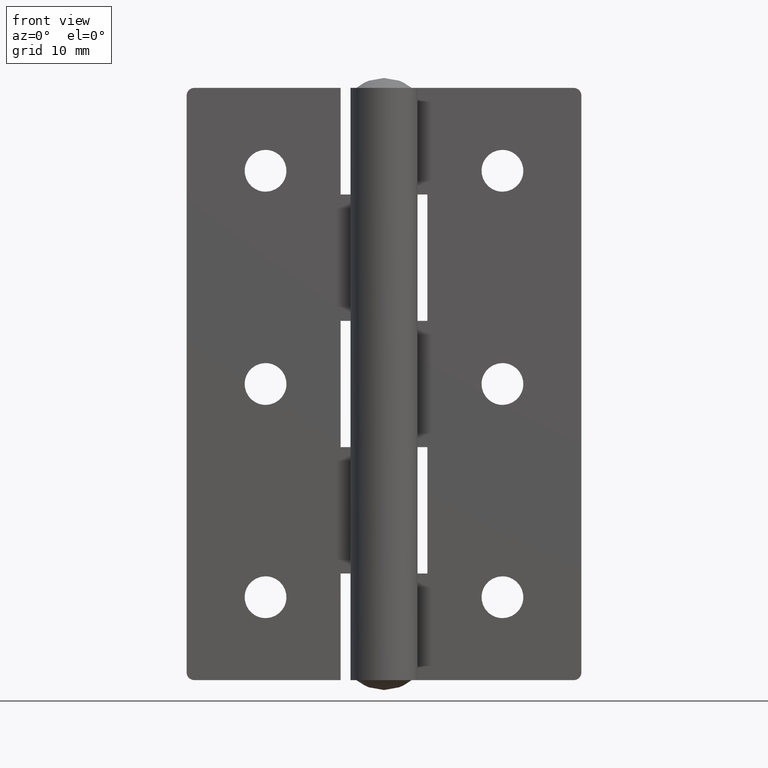
[diagram: clean part render]
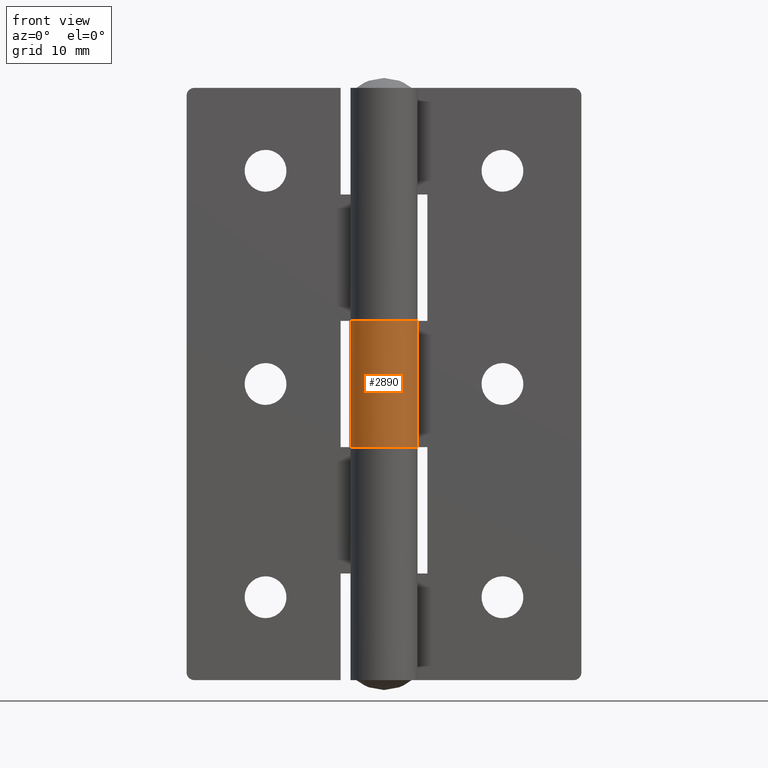
[diagram: same view with one face highlighted and labeled with its STEP entity id]
A machine part, front view. The second image highlights one B-rep face of the part: STEP entity #2890.
In plain terms, the highlighted face is a freeform B-spline surface patch.
Its self-contained STEP definition (entity closure, byte-faithful):
#2126=CARTESIAN_POINT('',(3.636275567115340,2.200000000000000,29.499984999999949));
#2127=VERTEX_POINT('',#2126);
#2128=CARTESIAN_POINT('',(-7.806864E-016,4.250000000000000,29.499984999999999));
#2129=VERTEX_POINT('',#2128);
#2130=CARTESIAN_POINT('',(3.636275567115340,2.200000000000003,29.499984999999949));
#2131=CARTESIAN_POINT('',(5.333369332345939,-0.605045724368995,29.499984999999953));
#2132=CARTESIAN_POINT('',(3.051051400271963,-2.958645864732462,29.499984999999949));
#2133=CARTESIAN_POINT('',(0.768733468197987,-5.312246005095930,29.499984999999953));
#2134=CARTESIAN_POINT('',(-2.087163146474181,-3.702195294686653,29.499984999999949));
#2135=CARTESIAN_POINT('',(-4.943059761146343,-2.092144584277380,29.499984999999953));
#2136=CARTESIAN_POINT('',(-4.110768176534545,1.078927707861306,29.499984999999949));
#2137=CARTESIAN_POINT('',(-3.278476591922745,4.250000000000001,29.499984999999953));
#2138=CARTESIAN_POINT('',(0.0,4.250000000000000,29.499984999999949));
#2146=(BOUNDED_CURVE()B_SPLINE_CURVE(2,(#2130,#2131,#2132,#2133,#2134,#2135,#2136,#2137,#2138),.UNSPECIFIED.,.F.,.U.)B_SPLINE_CURVE_WITH_KNOTS((3,2,2,2,3),(0.0,0.250000000000000,0.500000000000000,0.750000000000000,1.0),.UNSPECIFIED.)CURVE()GEOMETRIC_REPRESENTATION_ITEM()RATIONAL_B_SPLINE_CURVE((1.0,0.791790800346338,1.0,0.791790800346338,1.0,0.791790800346338,1.0,0.791790800346338,1.0))REPRESENTATION_ITEM(''));
#2147=EDGE_CURVE('',#2127,#2129,#2146,.T.);
#2318=CARTESIAN_POINT('',(-7.806866E-016,4.250000000000000,45.500000000000000));
#2319=VERTEX_POINT('',#2318);
#2325=CARTESIAN_POINT('',(3.636275567115340,2.200000000000000,45.500000000000000));
#2326=VERTEX_POINT('',#2325);
#2327=CARTESIAN_POINT('',(0.0,4.250000000000000,45.500000000000000));
#2328=CARTESIAN_POINT('',(-3.278476591922742,4.250000000000001,45.500000000000000));
#2329=CARTESIAN_POINT('',(-4.110768176534545,1.078927707861309,45.500000000000000));
#2330=CARTESIAN_POINT('',(-4.943059761146345,-2.092144584277381,45.500000000000000));
#2331=CARTESIAN_POINT('',(-2.087163146474180,-3.702195294686654,45.500000000000000));
#2332=CARTESIAN_POINT('',(0.768733468197986,-5.312246005095928,45.500000000000000));
#2333=CARTESIAN_POINT('',(3.051051400271961,-2.958645864732464,45.500000000000000));
#2334=CARTESIAN_POINT('',(5.333369332345939,-0.605045724368997,45.500000000000000));
#2335=CARTESIAN_POINT('',(3.636275567115342,2.200000000000001,45.500000000000000));
#2343=(BOUNDED_CURVE()B_SPLINE_CURVE(2,(#2327,#2328,#2329,#2330,#2331,#2332,#2333,#2334,#2335),.UNSPECIFIED.,.F.,.U.)B_SPLINE_CURVE_WITH_KNOTS((3,2,2,2,3),(0.0,0.250000000000000,0.500000000000000,0.750000000000000,1.0),.UNSPECIFIED.)CURVE()GEOMETRIC_REPRESENTATION_ITEM()RATIONAL_B_SPLINE_CURVE((1.0,0.791790800346338,1.0,0.791790800346338,1.0,0.791790800346338,1.0,0.791790800346338,1.0))REPRESENTATION_ITEM(''));
#2344=EDGE_CURVE('',#2319,#2326,#2343,.T.);
#2662=CARTESIAN_POINT('',(3.636275567115340,2.200000000000000,45.500000000000000));
#2663=CARTESIAN_POINT('',(3.636275567115340,2.200000000000000,29.499984999999949));
#2664=QUASI_UNIFORM_CURVE('',1,(#2662,#2663),.UNSPECIFIED.,.F.,.U.);
#2665=EDGE_CURVE('',#2326,#2127,#2664,.T.);
#2858=CARTESIAN_POINT('',(0.111252030308466,4.248543631146117,45.900000375000012));
#2859=CARTESIAN_POINT('',(0.111252030308466,4.248543631146117,29.089984615624950));
#2860=CARTESIAN_POINT('',(-5.135262419208975,4.385928447032795,45.900000375000019));
#2861=CARTESIAN_POINT('',(-5.135262419208975,4.385928447032795,29.089984615624950));
#2862=CARTESIAN_POINT('',(-4.178833357146807,-0.774500983341620,45.900000375000012));
#2863=CARTESIAN_POINT('',(-4.178833357146807,-0.774500983341620,29.089984615624950));
#2864=CARTESIAN_POINT('',(-3.222404295084639,-5.934930413716035,45.900000375000019));
#2865=CARTESIAN_POINT('',(-3.222404295084639,-5.934930413716035,29.089984615624950));
#2866=CARTESIAN_POINT('',(1.626404587551625,-3.926488013172970,45.900000375000012));
#2867=CARTESIAN_POINT('',(1.626404587551625,-3.926488013172970,29.089984615624950));
#2868=CARTESIAN_POINT('',(6.475213470187888,-1.918045612629907,45.900000375000019));
#2869=CARTESIAN_POINT('',(6.475213470187888,-1.918045612629907,29.089984615624950));
#2870=CARTESIAN_POINT('',(3.502536301643569,2.407226506930532,45.900000375000012));
#2871=CARTESIAN_POINT('',(3.502536301643569,2.407226506930532,29.089984615624950));
#2879=(BOUNDED_SURFACE()B_SPLINE_SURFACE(1,2,((#2858,#2860,#2862,#2864,#2866,#2868,#2870),(#2859,#2861,#2863,#2865,#2867,#2869,#2871)),.UNSPECIFIED.,.F.,.F.,.U.)B_SPLINE_SURFACE_WITH_KNOTS((2,2),(3,2,2,3),(0.0,16.810015759375069),(0.0,8.108584055868720,16.217168111737440,24.325752167606161),.UNSPECIFIED.)GEOMETRIC_REPRESENTATION_ITEM()RATIONAL_B_SPLINE_SURFACE(((1.0,0.629320391049838,1.0,0.629320391049838,1.0,0.629320391049838,1.0),(1.0,0.629320391049838,1.0,0.629320391049838,1.0,0.629320391049838,1.0)))REPRESENTATION_ITEM('')SURFACE());
#2880=ORIENTED_EDGE('',*,*,#2147,.F.);
#2881=ORIENTED_EDGE('',*,*,#2665,.F.);
#2882=ORIENTED_EDGE('',*,*,#2344,.F.);
#2883=CARTESIAN_POINT('',(-7.806866E-016,4.250000000000000,45.500000000000000));
#2884=CARTESIAN_POINT('',(-7.806864E-016,4.250000000000000,29.499984999999999));
#2885=QUASI_UNIFORM_CURVE('',1,(#2883,#2884),.UNSPECIFIED.,.F.,.U.);
#2886=EDGE_CURVE('',#2319,#2129,#2885,.T.);
#2887=ORIENTED_EDGE('',*,*,#2886,.T.);
#2888=EDGE_LOOP('',(#2880,#2881,#2882,#2887));
#2889=FACE_OUTER_BOUND('',#2888,.T.);
#2890=ADVANCED_FACE('',(#2889),#2879,.T.);